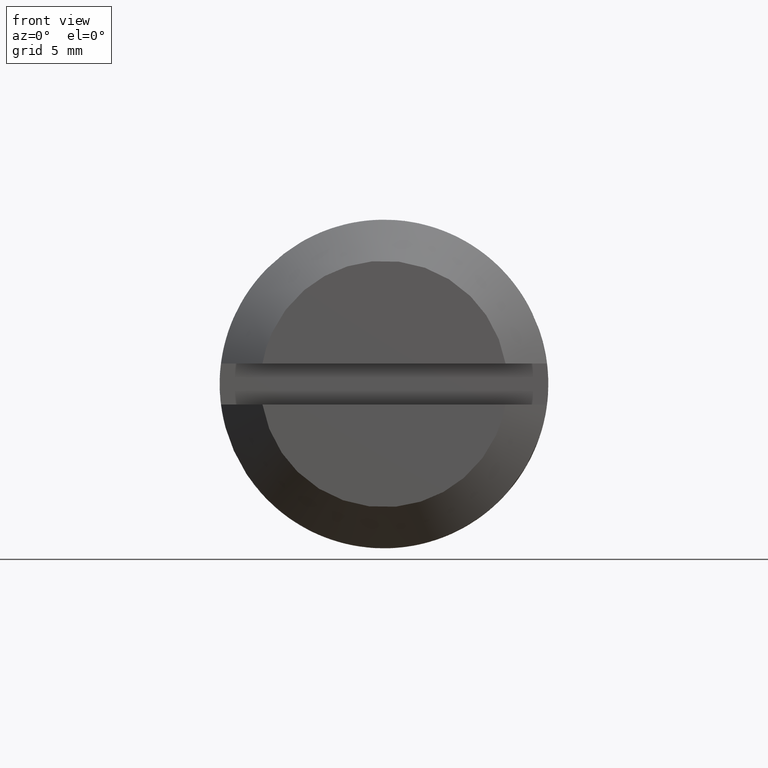
[diagram: clean part render]
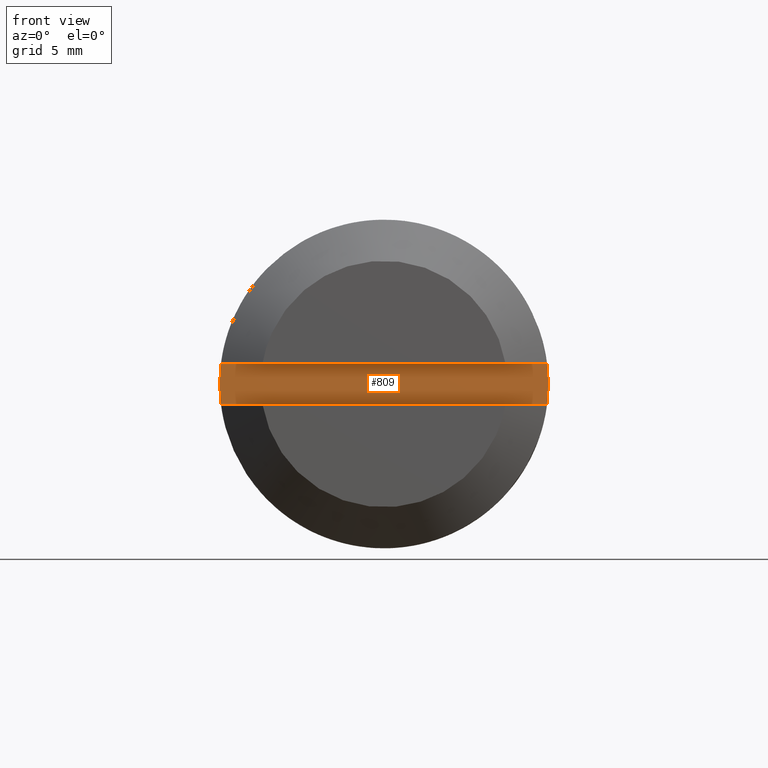
[diagram: same view with one face highlighted and labeled with its STEP entity id]
A machine part, front view. The second image highlights one B-rep face of the part: STEP entity #809.
In plain terms, the highlighted face is a freeform B-spline surface patch.
Its self-contained STEP definition (entity closure, byte-faithful):
#646=CARTESIAN_POINT('',(7.937253999999999,-25.0,1.0));
#647=VERTEX_POINT('',#646);
#653=CARTESIAN_POINT('',(7.937253933193770,-25.0,-1.0));
#654=VERTEX_POINT('',#653);
#655=CARTESIAN_POINT('',(7.937253933193772,-25.0,-1.000000000000002));
#656=CARTESIAN_POINT('',(8.063242090333306,-25.000000000000004,-4.208403E-009));
#657=CARTESIAN_POINT('',(7.937253999999999,-25.0,1.0));
#665=(BOUNDED_CURVE()B_SPLINE_CURVE(2,(#655,#656,#657),.UNSPECIFIED.,.F.,.U.)CURVE()GEOMETRIC_REPRESENTATION_ITEM()QUASI_UNIFORM_CURVE()RATIONAL_B_SPLINE_CURVE((1.0,0.992156741714462,1.0))REPRESENTATION_ITEM(''));
#666=EDGE_CURVE('',#654,#647,#665,.T.);
#732=CARTESIAN_POINT('',(-7.937253933193770,-25.0,-1.0));
#733=VERTEX_POINT('',#732);
#739=CARTESIAN_POINT('',(-7.937253933193770,-25.0,1.0));
#740=VERTEX_POINT('',#739);
#741=CARTESIAN_POINT('',(-7.937253933193772,-25.0,1.000000000000001));
#742=CARTESIAN_POINT('',(-8.063242090863515,-24.999999999999996,1.084202E-015));
#743=CARTESIAN_POINT('',(-7.937253933193772,-25.0,-1.000000000000000));
#751=(BOUNDED_CURVE()B_SPLINE_CURVE(2,(#741,#742,#743),.UNSPECIFIED.,.F.,.U.)CURVE()GEOMETRIC_REPRESENTATION_ITEM()QUASI_UNIFORM_CURVE()RATIONAL_B_SPLINE_CURVE((1.0,0.992156741649221,1.0))REPRESENTATION_ITEM(''));
#752=EDGE_CURVE('',#740,#733,#751,.T.);
#790=CARTESIAN_POINT('',(-8.798892630952986,-25.0,1.099899996123612));
#791=CARTESIAN_POINT('',(8.798892075253717,-25.0,1.099899996123612));
#792=CARTESIAN_POINT('',(-8.798892630952986,-25.0,-1.099900049767792));
#793=CARTESIAN_POINT('',(8.798892075253717,-25.0,-1.099900049767792));
#794=B_SPLINE_SURFACE_WITH_KNOTS('',1,1,((#790,#792),(#791,#793)),.UNSPECIFIED.,.F.,.F.,.U.,(2,2),(2,2),(0.0,17.597784706206699),(0.0,2.199800045891404),.UNSPECIFIED.);
#795=CARTESIAN_POINT('',(7.937253933193770,-25.0,-1.0));
#796=CARTESIAN_POINT('',(-7.937253933193770,-25.0,-1.0));
#797=QUASI_UNIFORM_CURVE('',1,(#795,#796),.UNSPECIFIED.,.F.,.U.);
#798=EDGE_CURVE('',#654,#733,#797,.T.);
#799=ORIENTED_EDGE('',*,*,#798,.F.);
#800=ORIENTED_EDGE('',*,*,#666,.T.);
#801=CARTESIAN_POINT('',(-7.937253933193770,-25.0,1.0));
#802=CARTESIAN_POINT('',(7.937253999999999,-25.0,1.0));
#803=QUASI_UNIFORM_CURVE('',1,(#801,#802),.UNSPECIFIED.,.F.,.U.);
#804=EDGE_CURVE('',#740,#647,#803,.T.);
#805=ORIENTED_EDGE('',*,*,#804,.F.);
#806=ORIENTED_EDGE('',*,*,#752,.T.);
#807=EDGE_LOOP('',(#799,#800,#805,#806));
#808=FACE_OUTER_BOUND('',#807,.T.);
#809=ADVANCED_FACE('',(#808),#794,.F.);